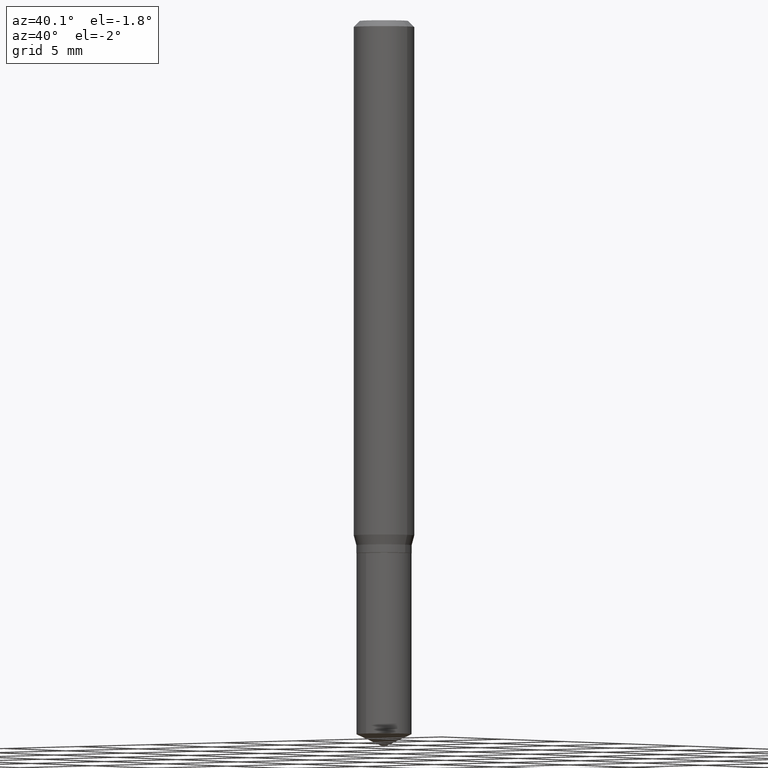
[diagram: clean part render]
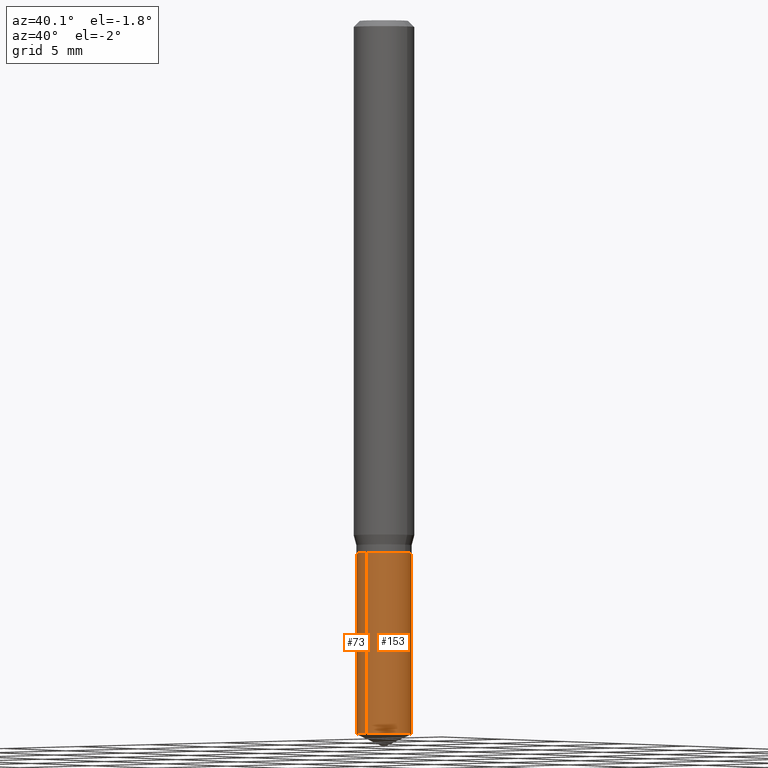
[diagram: same view with one multi-face feature highlighted, each face labeled with its STEP entity id]
A machine part, auxiliary view. The highlighted faces form ONE feature: a constant-radius fillet chain: 2 tangent blend faces with common blend radius 1.4503 mm. The faces share edges in the B-rep.
Their STEP definitions:
[1] entity #73 (Cylinder):
#8 = CARTESIAN_POINT ( 'NONE',  ( 2.690015686803650369E-29, -3.840629472727460101E-15, -1.100000000000000089 ) ) ;
#20 = DIRECTION ( 'NONE',  ( -6.982962677686265133E-15, -1.000000000000000000, 2.392161115292699739E-15 ) ) ;
#41 = AXIS2_PLACEMENT_3D ( 'NONE', #433, #98, #443 ) ;
#42 = DIRECTION ( 'NONE',  ( -6.982962677686265133E-15, -1.000000000000000000, 2.392161115292699739E-15 ) ) ;
#45 = CARTESIAN_POINT ( 'NONE',  ( -3.987271688958588426E-16, -0.05710000000000383519, -1.099999999999999867 ) ) ;
#60 = ORIENTED_EDGE ( 'NONE', *, *, #399, .F. ) ;
#73 = ADVANCED_FACE ( 'NONE', ( #299 ), #76, .T. ) ;
#76 = CYLINDRICAL_SURFACE ( 'NONE', #244, 0.05709999999999999798 ) ;
#84 = AXIS2_PLACEMENT_3D ( 'NONE', #285, #289, #20 ) ;
#95 = CARTESIAN_POINT ( 'NONE',  ( 4.057199021190439637E-16, 0.05709999999999615383, -1.100000000000000089 ) ) ;
#98 = DIRECTION ( 'NONE',  ( -2.445399690415121530E-29, 3.491580316559632610E-15, 1.000000000000000000 ) ) ;
#102 = DIRECTION ( 'NONE',  ( -2.445399690415121810E-29, 3.491580316559632610E-15, 1.000000000000000000 ) ) ;
#103 = ORIENTED_EDGE ( 'NONE', *, *, #442, .F. ) ;
#117 = VECTOR ( 'NONE', #102, 39.37007874015748143 ) ;
#130 = LINE ( 'NONE', #95, #117 ) ;
#132 = VERTEX_POINT ( 'NONE', #420 ) ;
#141 = VERTEX_POINT ( 'NONE', #303 ) ;
#150 = DIRECTION ( 'NONE',  ( -2.445399690415121530E-29, 3.491580316559632610E-15, 1.000000000000000000 ) ) ;
#201 = DIRECTION ( 'NONE',  ( -2.445399690415121810E-29, 3.491580316559632610E-15, 1.000000000000000000 ) ) ;
#244 = AXIS2_PLACEMENT_3D ( 'NONE', #8, #150, #42 ) ;
#255 = VECTOR ( 'NONE', #201, 39.37007874015748143 ) ;
#285 = CARTESIAN_POINT ( 'NONE',  ( 2.690015686803650369E-29, -3.840629472727460101E-15, -1.100000000000000089 ) ) ;
#289 = DIRECTION ( 'NONE',  ( -2.445399690415121530E-29, 3.491580316559632610E-15, 1.000000000000000000 ) ) ;
#297 = ORIENTED_EDGE ( 'NONE', *, *, #463, .T. ) ;
#299 = FACE_OUTER_BOUND ( 'NONE', #364, .T. ) ;
#303 = CARTESIAN_POINT ( 'NONE',  ( 4.057199021190531836E-16, 0.05709999999999615383, -1.100000000000000089 ) ) ;
#308 = EDGE_CURVE ( 'NONE', #454, #448, #390, .T. ) ;
#328 = CARTESIAN_POINT ( 'NONE',  ( -3.987271688958588426E-16, -0.05710000000000383519, -1.099999999999999867 ) ) ;
#364 = EDGE_LOOP ( 'NONE', ( #60, #297, #404, #103 ) ) ;
#390 = LINE ( 'NONE', #45, #255 ) ;
#399 = EDGE_CURVE ( 'NONE', #132, #141, #130, .T. ) ;
#404 = ORIENTED_EDGE ( 'NONE', *, *, #308, .T. ) ;
#420 = CARTESIAN_POINT ( 'NONE',  ( 4.057199021190532822E-16, 0.05709999999999485626, -1.473373832719349741 ) ) ;
#433 = CARTESIAN_POINT ( 'NONE',  ( 3.603063941744655635E-29, -5.144294197768769891E-15, -1.473373832719349519 ) ) ;
#442 = EDGE_CURVE ( 'NONE', #141, #448, #476, .T. ) ;
#443 = DIRECTION ( 'NONE',  ( -6.982962677686265133E-15, -1.000000000000000000, 4.784322230585399479E-15 ) ) ;
#448 = VERTEX_POINT ( 'NONE', #328 ) ;
#454 = VERTEX_POINT ( 'NONE', #481 ) ;
#463 = EDGE_CURVE ( 'NONE', #132, #454, #468, .T. ) ;
#468 = CIRCLE ( 'NONE', #41, 0.05709999999999999798 ) ;
#476 = CIRCLE ( 'NONE', #84, 0.05709999999999999798 ) ;
#481 = CARTESIAN_POINT ( 'NONE',  ( -3.987271688958497707E-16, -0.05710000000000516052, -1.473373832719349297 ) ) ;
[2] entity #153 (Cylinder):
#14 = EDGE_CURVE ( 'NONE', #454, #132, #475, .T. ) ;
#15 = DIRECTION ( 'NONE',  ( -2.445399690415121530E-29, 3.491580316559632610E-15, 1.000000000000000000 ) ) ;
#45 = CARTESIAN_POINT ( 'NONE',  ( -3.987271688958588426E-16, -0.05710000000000383519, -1.099999999999999867 ) ) ;
#52 = AXIS2_PLACEMENT_3D ( 'NONE', #346, #427, #148 ) ;
#82 = AXIS2_PLACEMENT_3D ( 'NONE', #272, #157, #317 ) ;
#95 = CARTESIAN_POINT ( 'NONE',  ( 4.057199021190439637E-16, 0.05709999999999615383, -1.100000000000000089 ) ) ;
#102 = DIRECTION ( 'NONE',  ( -2.445399690415121810E-29, 3.491580316559632610E-15, 1.000000000000000000 ) ) ;
#117 = VECTOR ( 'NONE', #102, 39.37007874015748143 ) ;
#130 = LINE ( 'NONE', #95, #117 ) ;
#132 = VERTEX_POINT ( 'NONE', #420 ) ;
#141 = VERTEX_POINT ( 'NONE', #303 ) ;
#148 = DIRECTION ( 'NONE',  ( -6.982962677686265133E-15, -1.000000000000000000, 4.784322230585399479E-15 ) ) ;
#153 = ADVANCED_FACE ( 'NONE', ( #465 ), #161, .T. ) ;
#157 = DIRECTION ( 'NONE',  ( -2.445399690415121530E-29, 3.491580316559632610E-15, 1.000000000000000000 ) ) ;
#161 = CYLINDRICAL_SURFACE ( 'NONE', #176, 0.05709999999999999798 ) ;
#176 = AXIS2_PLACEMENT_3D ( 'NONE', #235, #15, #207 ) ;
#177 = ORIENTED_EDGE ( 'NONE', *, *, #308, .F. ) ;
#196 = EDGE_CURVE ( 'NONE', #448, #141, #336, .T. ) ;
#201 = DIRECTION ( 'NONE',  ( -2.445399690415121810E-29, 3.491580316559632610E-15, 1.000000000000000000 ) ) ;
#207 = DIRECTION ( 'NONE',  ( -6.982962677686265133E-15, -1.000000000000000000, 2.392161115292699739E-15 ) ) ;
#213 = EDGE_LOOP ( 'NONE', ( #439, #371, #447, #177 ) ) ;
#235 = CARTESIAN_POINT ( 'NONE',  ( 2.690015686803650369E-29, -3.840629472727460101E-15, -1.100000000000000089 ) ) ;
#255 = VECTOR ( 'NONE', #201, 39.37007874015748143 ) ;
#272 = CARTESIAN_POINT ( 'NONE',  ( 2.690015686803650369E-29, -3.840629472727460101E-15, -1.100000000000000089 ) ) ;
#303 = CARTESIAN_POINT ( 'NONE',  ( 4.057199021190531836E-16, 0.05709999999999615383, -1.100000000000000089 ) ) ;
#308 = EDGE_CURVE ( 'NONE', #454, #448, #390, .T. ) ;
#317 = DIRECTION ( 'NONE',  ( -6.982962677686265133E-15, -1.000000000000000000, 2.392161115292699739E-15 ) ) ;
#328 = CARTESIAN_POINT ( 'NONE',  ( -3.987271688958588426E-16, -0.05710000000000383519, -1.099999999999999867 ) ) ;
#336 = CIRCLE ( 'NONE', #82, 0.05709999999999999798 ) ;
#346 = CARTESIAN_POINT ( 'NONE',  ( 3.603063941744655635E-29, -5.144294197768769891E-15, -1.473373832719349519 ) ) ;
#371 = ORIENTED_EDGE ( 'NONE', *, *, #399, .T. ) ;
#390 = LINE ( 'NONE', #45, #255 ) ;
#399 = EDGE_CURVE ( 'NONE', #132, #141, #130, .T. ) ;
#420 = CARTESIAN_POINT ( 'NONE',  ( 4.057199021190532822E-16, 0.05709999999999485626, -1.473373832719349741 ) ) ;
#427 = DIRECTION ( 'NONE',  ( -2.445399690415121530E-29, 3.491580316559632610E-15, 1.000000000000000000 ) ) ;
#439 = ORIENTED_EDGE ( 'NONE', *, *, #14, .T. ) ;
#447 = ORIENTED_EDGE ( 'NONE', *, *, #196, .F. ) ;
#448 = VERTEX_POINT ( 'NONE', #328 ) ;
#454 = VERTEX_POINT ( 'NONE', #481 ) ;
#465 = FACE_OUTER_BOUND ( 'NONE', #213, .T. ) ;
#475 = CIRCLE ( 'NONE', #52, 0.05709999999999999798 ) ;
#481 = CARTESIAN_POINT ( 'NONE',  ( -3.987271688958497707E-16, -0.05710000000000516052, -1.473373832719349297 ) ) ;